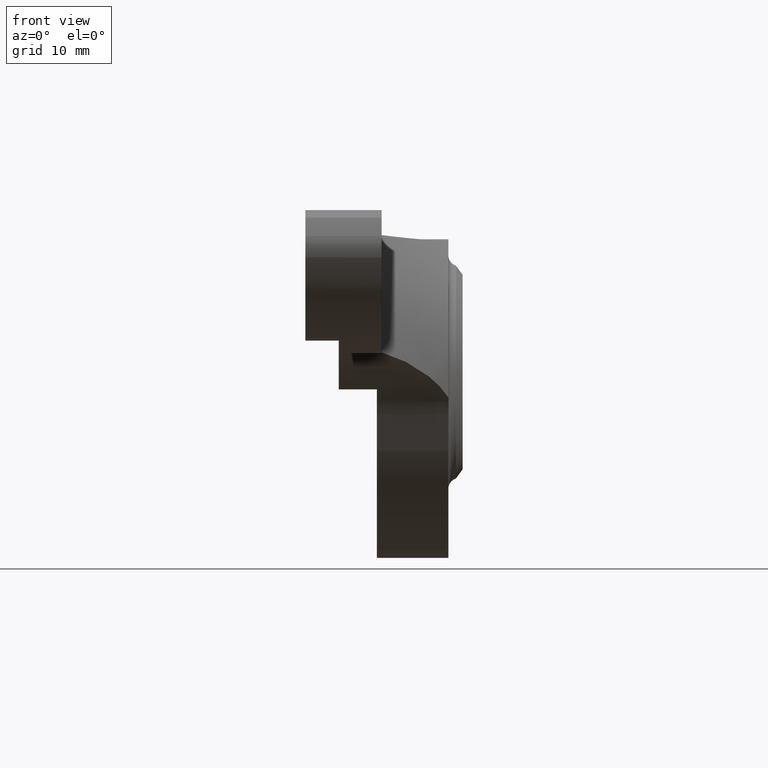
[diagram: clean part render]
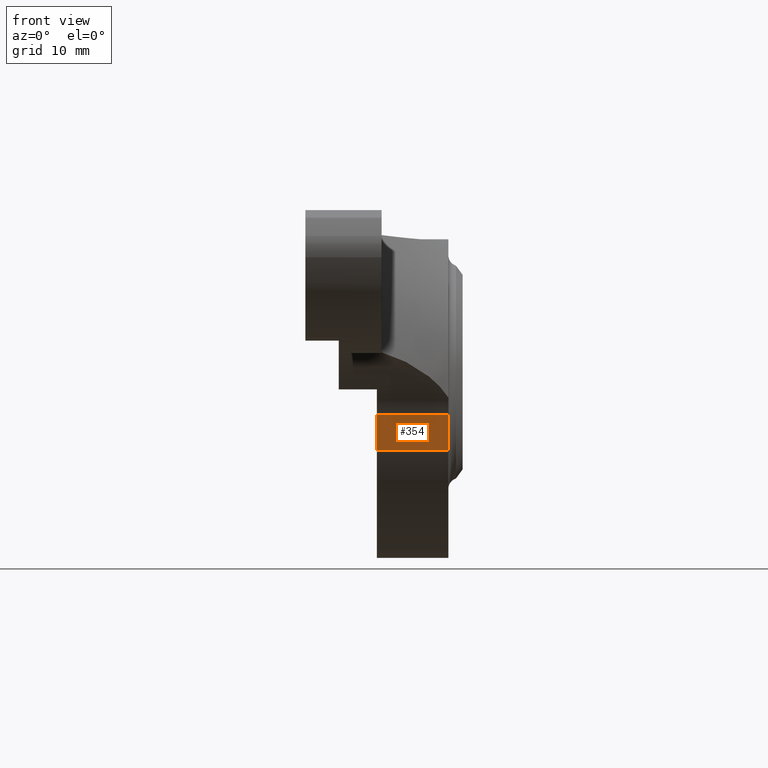
[diagram: same view with one face highlighted and labeled with its STEP entity id]
A machine part, front view. The second image highlights one B-rep face of the part: STEP entity #354.
In plain terms, the highlighted planar face has unit normal (0, -0.852, -0.5235).
Its self-contained STEP definition (entity closure, byte-faithful):
#24 = LINE ( 'NONE', #367, #409 ) ;
#43 = CARTESIAN_POINT ( 'NONE',  ( 0.0000000000000000000, -13.68810267792629531, -4.424803575130384026 ) ) ;
#99 = EDGE_CURVE ( 'NONE', #393, #1038, #285, .T. ) ;
#142 = CARTESIAN_POINT ( 'NONE',  ( 7.500000000000000000, -11.33231899929779907, -8.258898417398599534 ) ) ;
#285 = LINE ( 'NONE', #1257, #1781 ) ;
#341 = DIRECTION ( 'NONE',  ( 0.0000000000000000000, 0.5235074841396647471, -0.8520210760595998689 ) ) ;
#354 = ADVANCED_FACE ( 'NONE', ( #1881 ), #642, .T. ) ;
#367 = CARTESIAN_POINT ( 'NONE',  ( 7.500000000000000000, -13.68810267792629531, -4.424803575130384914 ) ) ;
#369 = LINE ( 'NONE', #707, #1506 ) ;
#386 = VECTOR ( 'NONE', #1777, 1000.000000000000000 ) ;
#393 = VERTEX_POINT ( 'NONE', #43 ) ;
#409 = VECTOR ( 'NONE', #1269, 1000.000000000000000 ) ;
#535 = EDGE_CURVE ( 'NONE', #1038, #836, #24, .T. ) ;
#642 = PLANE ( 'NONE',  #942 ) ;
#678 = EDGE_LOOP ( 'NONE', ( #1030, #1146, #976, #966 ) ) ;
#707 = CARTESIAN_POINT ( 'NONE',  ( 0.0000000000000000000, -13.68810267792629531, -4.424803575130384914 ) ) ;
#762 = EDGE_CURVE ( 'NONE', #393, #1639, #369, .T. ) ;
#836 = VERTEX_POINT ( 'NONE', #142 ) ;
#942 = AXIS2_PLACEMENT_3D ( 'NONE', #1841, #1531, #341 ) ;
#966 = ORIENTED_EDGE ( 'NONE', *, *, #535, .F. ) ;
#976 = ORIENTED_EDGE ( 'NONE', *, *, #1575, .T. ) ;
#1030 = ORIENTED_EDGE ( 'NONE', *, *, #99, .F. ) ;
#1038 = VERTEX_POINT ( 'NONE', #1691 ) ;
#1146 = ORIENTED_EDGE ( 'NONE', *, *, #762, .T. ) ;
#1162 = DIRECTION ( 'NONE',  ( 0.0000000000000000000, 0.5235074841396647471, -0.8520210760595998689 ) ) ;
#1176 = CARTESIAN_POINT ( 'NONE',  ( 0.0000000000000000000, -11.33231899929781150, -8.258898417398571112 ) ) ;
#1257 = CARTESIAN_POINT ( 'NONE',  ( -46.24134013796409448, -13.68810267792629531, -4.424803575130384914 ) ) ;
#1269 = DIRECTION ( 'NONE',  ( 0.0000000000000000000, 0.5235074841396647471, -0.8520210760595999799 ) ) ;
#1327 = CARTESIAN_POINT ( 'NONE',  ( -46.24134013796409448, -11.33231899929781150, -8.258898417398571112 ) ) ;
#1397 = DIRECTION ( 'NONE',  ( 1.000000000000000000, 0.0000000000000000000, 0.0000000000000000000 ) ) ;
#1506 = VECTOR ( 'NONE', #1162, 1000.000000000000114 ) ;
#1531 = DIRECTION ( 'NONE',  ( 0.0000000000000000000, -0.8520210760595999799, -0.5235074841396648582 ) ) ;
#1533 = LINE ( 'NONE', #1327, #386 ) ;
#1575 = EDGE_CURVE ( 'NONE', #1639, #836, #1533, .T. ) ;
#1639 = VERTEX_POINT ( 'NONE', #1176 ) ;
#1691 = CARTESIAN_POINT ( 'NONE',  ( 7.500000000000000000, -13.68810267792629531, -4.424803575130384914 ) ) ;
#1777 = DIRECTION ( 'NONE',  ( 1.000000000000000000, 0.0000000000000000000, 0.0000000000000000000 ) ) ;
#1781 = VECTOR ( 'NONE', #1397, 1000.000000000000000 ) ;
#1841 = CARTESIAN_POINT ( 'NONE',  ( -46.24134013796409448, -13.68810267792629531, -4.424803575130384914 ) ) ;
#1881 = FACE_OUTER_BOUND ( 'NONE', #678, .T. ) ;